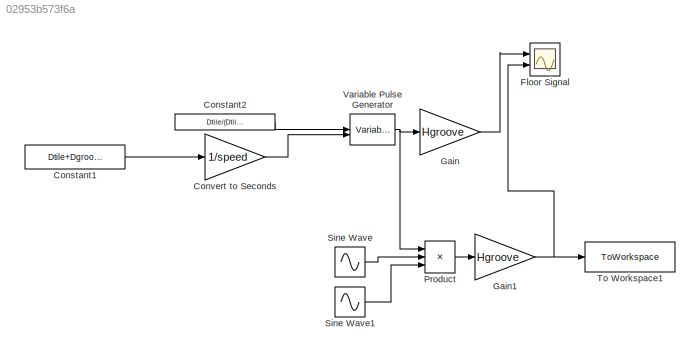
MODEL slx_02953b573f6a
KIND model
CONFIG AbsTol = auto
CONFIG EnableMultiTasking = off
CONFIG FixedStep = auto
CONFIG MaxStep = 0.001
CONFIG MinStep = auto
CONFIG RelTol = 1e-3
CONFIG SampleTimeConstraint = Unconstrained
CONFIG SolverName = VariableStepAuto
CONFIG StartTime = 0.0
CONFIG StopTime = 5
WORKSPACE source: mxarray member
WORKSPACE ltile = 0.30084
BLOCK [Constant] Constant1
  Value = Dtile+Dgroove
BLOCK [Constant] Constant2
  Value = Dtile/(Dtile+Dgroove)
BLOCK [Gain] Convert to Seconds
  Gain = 1/speed
BLOCK [Scope] Floor Signal
  Floating = off
  NumInputPorts = 2
  Ports = [2]
  ScopeSpecificationString = Simulink.scopes.TimeScopeBlockCfg('CurrentConfiguration', extmgr.ConfigurationSet(extmgr.Configuration('Core','General UI',true),extmgr.Configuration('Core','Source UI',true),extmgr.Configuration('Sources','WiredSimulink',true),extmgr.Configuration('Visuals','Time Domain',true,'SerializedDisplays',{struct('MinYLimReal','-0.00062','MaxYLimReal','0.00562','YLabelReal','','MinYLimMag','0.00000','MaxY...<+1332ch>
BLOCK [Gain] Gain
  Gain = Hgroove
BLOCK [Gain] Gain1
  Gain = Hgroove
BLOCK [Product] Product
  Inputs = 3
  NameLocation = right
  Ports = [3, 1]
BLOCK [Sin] Sine Wave
  Frequency = (pi*speed)/(Dtile + Dgroove)
  Ports = [0, 1]
  SampleTime = 0
BLOCK [Sin] Sine Wave1
  Frequency = (pi*speed)/(Dtile+ Dgroove)
  Ports = [0, 1]
  SampleTime = 0
BLOCK [ToWorkspace] To Workspace1
  FixptAsFi = on
  MaxDataPoints = inf
  Ports = [1]
  SampleTime = -1
  SaveFormat = Timeseries
  VariableName = floorout
BLOCK [VariablePulseGenerator] Variable Pulse Generator
  SampleTime = ltile + lgroove
LINE Constant1:1 -> Convert to Seconds:1
LINE Constant2:1 -> Variable Pulse Generator:1
LINE Convert to Seconds:1 -> Variable Pulse Generator:2
NET Gain1:1 -> Floor Signal:2, To Workspace1:1
LINE Gain:1 -> Floor Signal:1
LINE Product:1 -> Gain1:1
LINE Sine Wave1:1 -> Product:3
LINE Sine Wave:1 -> Product:2
NET Variable Pulse Generator:1 -> Gain:1, Product:1
note: NET lines group one-source signal fan-out (src -> all destinations, sorted); 1:1 wires keep LINE
